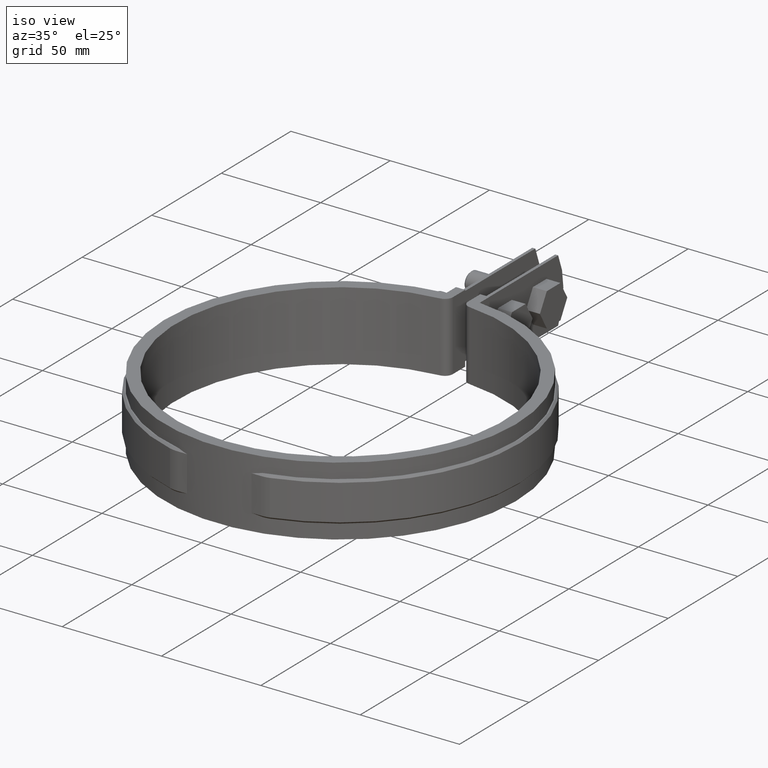
[diagram: clean part render]
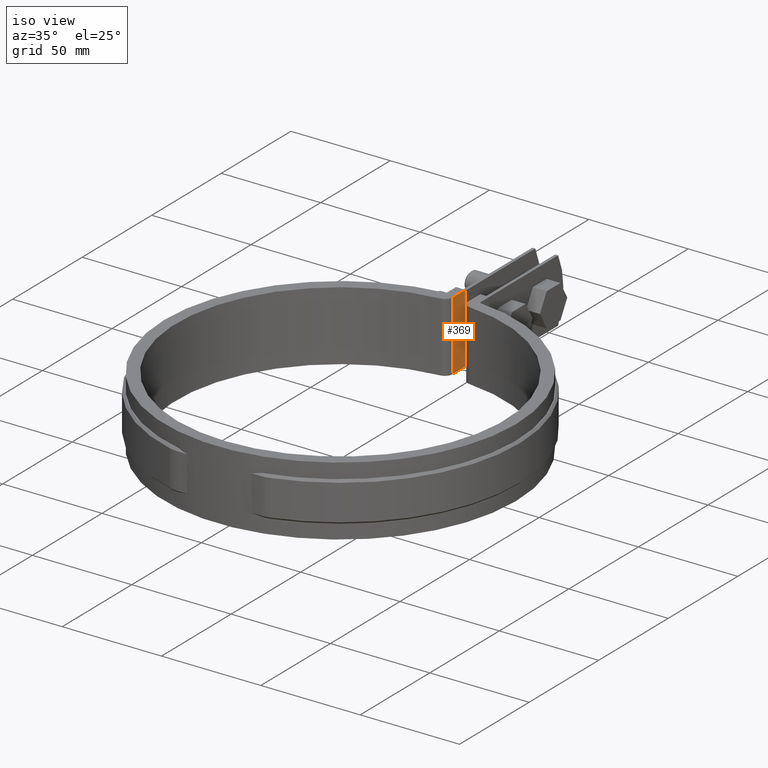
[diagram: same view with one face highlighted and labeled with its STEP entity id]
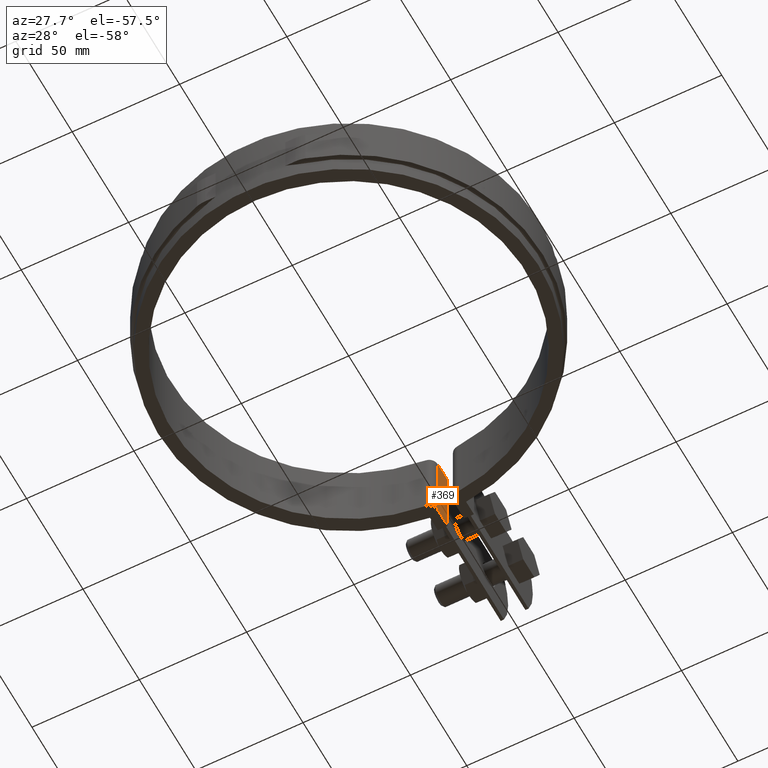
[diagram: same view with one face highlighted and labeled with its STEP entity id]
A machine part, iso view. The second image highlights one B-rep face of the part: STEP entity #369.
A second angle (auxiliary view) of the same face is appended — the face is thin or edge-on in the first view.
In plain terms, the highlighted planar face has unit normal (1, -0, 0).
Its self-contained STEP definition (entity closure, byte-faithful):
#369 = ADVANCED_FACE( '', ( #594 ), #595, .T. );
#594 = FACE_OUTER_BOUND( '', #1680, .T. );
#595 = PLANE( '', #1681 );
#1680 = EDGE_LOOP( '', ( #3850, #3851, #3852, #3853 ) );
#1681 = AXIS2_PLACEMENT_3D( '', #3854, #3855, #3856 );
#3850 = ORIENTED_EDGE( '', *, *, #4787, .F. );
#3851 = ORIENTED_EDGE( '', *, *, #4786, .F. );
#3852 = ORIENTED_EDGE( '', *, *, #4788, .T. );
#3853 = ORIENTED_EDGE( '', *, *, #4771, .T. );
#3854 = CARTESIAN_POINT( '', ( -3.79999999999998, 86.2480144698995, -33.5000000000000 ) );
#3855 = DIRECTION( '', ( 1.00000000000000, -6.10365667473322E-017, 1.55346894943063E-035 ) );
#3856 = DIRECTION( '', ( -6.10365667473322E-017, -1.00000000000000, 2.54514470950076E-019 ) );
#4771 = EDGE_CURVE( '', #5275, #5272, #5276, .T. );
#4786 = EDGE_CURVE( '', #5298, #5296, #5300, .T. );
#4787 = EDGE_CURVE( '', #5296, #5272, #5301, .T. );
#4788 = EDGE_CURVE( '', #5298, #5275, #5302, .T. );
#5272 = VERTEX_POINT( '', #7994 );
#5275 = VERTEX_POINT( '', #7998 );
#5276 = LINE( '', #7999, #8000 );
#5296 = VERTEX_POINT( '', #8028 );
#5298 = VERTEX_POINT( '', #8030 );
#5300 = LINE( '', #8032, #8033 );
#5301 = LINE( '', #8034, #8035 );
#5302 = LINE( '', #8036, #8037 );
#7994 = CARTESIAN_POINT( '', ( -3.79999999999998, 95.1000000000000, 1.50000000000000 ) );
#7998 = CARTESIAN_POINT( '', ( -3.79999999999998, 95.1000000000000, -33.5000000000000 ) );
#7999 = CARTESIAN_POINT( '', ( -3.79999999999998, 95.1000000000000, -33.5000000000000 ) );
#8000 = VECTOR( '', #8811, 1000.00000000000 );
#8028 = CARTESIAN_POINT( '', ( -3.79999999999998, 86.2480144698995, 1.50000000000000 ) );
#8030 = CARTESIAN_POINT( '', ( -3.79999999999998, 86.2480144698995, -33.5000000000000 ) );
#8032 = CARTESIAN_POINT( '', ( -3.79999999999998, 86.2480144698995, -33.5000000000000 ) );
#8033 = VECTOR( '', #8838, 1000.00000000000 );
#8034 = CARTESIAN_POINT( '', ( -3.79999999999998, 86.2480144698995, 1.50000000000000 ) );
#8035 = VECTOR( '', #8839, 1000.00000000000 );
#8036 = CARTESIAN_POINT( '', ( -3.79999999999998, 86.2480144698995, -33.5000000000000 ) );
#8037 = VECTOR( '', #8840, 1000.00000000000 );
#8811 = DIRECTION( '', ( 0.000000000000000, 2.54514470950076E-019, 1.00000000000000 ) );
#8838 = DIRECTION( '', ( 0.000000000000000, 2.54514470950076E-019, 1.00000000000000 ) );
#8839 = DIRECTION( '', ( 6.10365667473322E-017, 1.00000000000000, -4.81482486096809E-035 ) );
#8840 = DIRECTION( '', ( 6.10365667473322E-017, 1.00000000000000, -4.81482486096809E-035 ) );